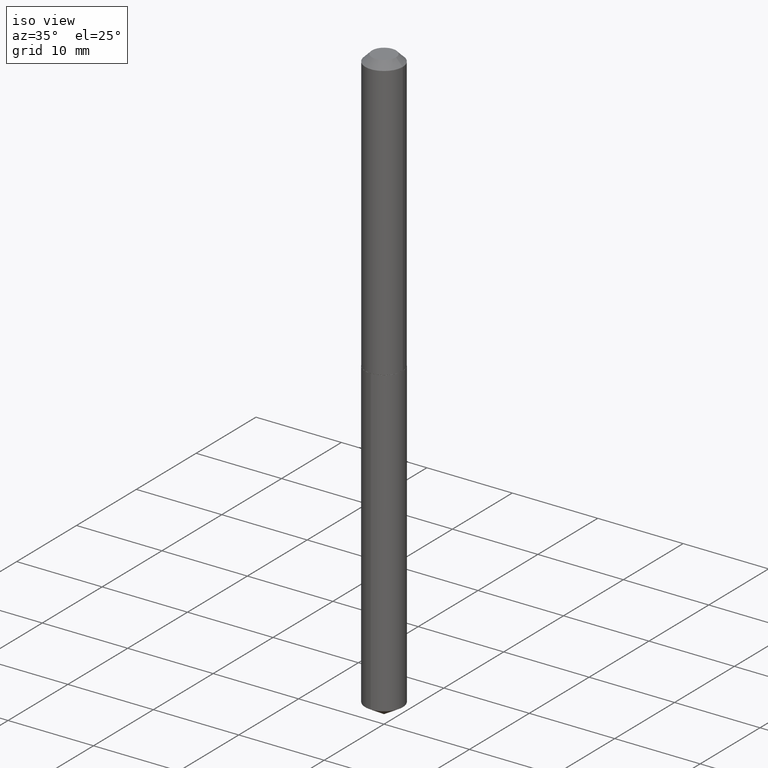
[diagram: clean part render]
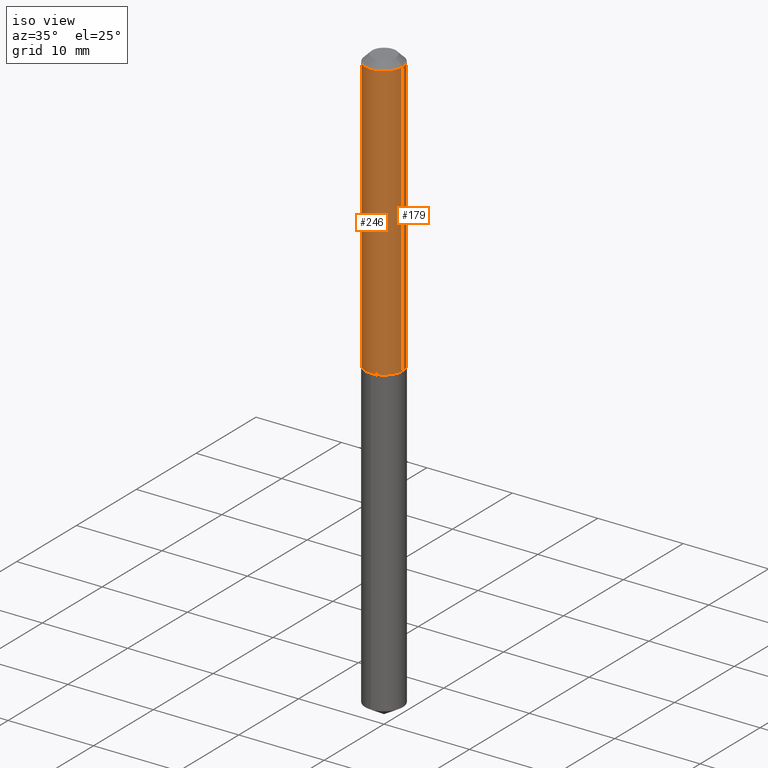
[diagram: same view with one multi-face feature highlighted, each face labeled with its STEP entity id]
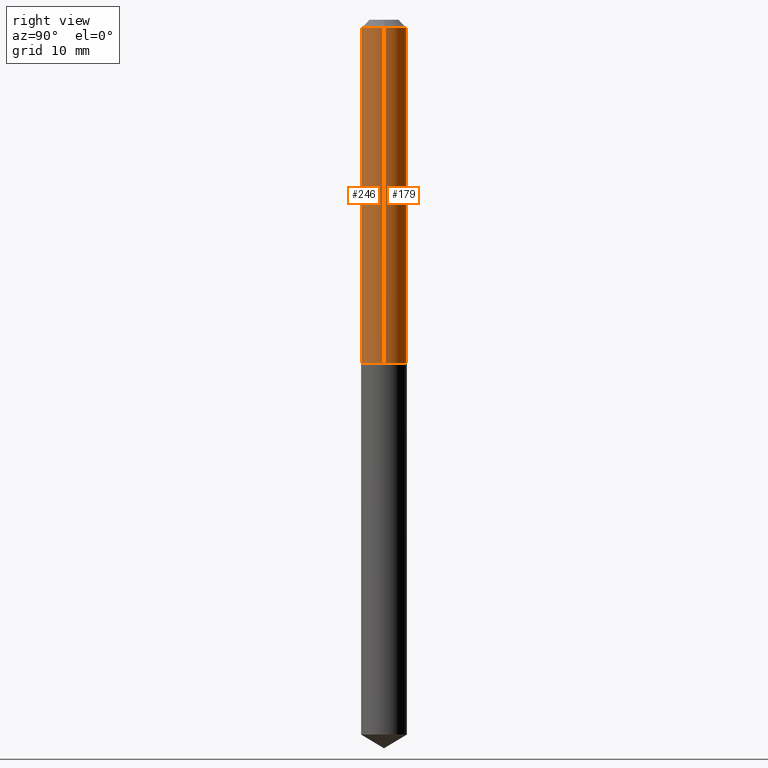
[diagram: same view with one multi-face feature highlighted, each face labeled with its STEP entity id]
A machine part, iso view. The highlighted faces form ONE feature: a constant-radius fillet chain: 2 tangent blend faces with common blend radius 2.1971 mm. The faces share edges in the B-rep.
A second angle (right view) of the same feature is appended — it is thin or edge-on in the first view.
Their STEP definitions:
[1] entity #179 (Cylinder):
#18 = DIRECTION ( 'NONE',  ( 1.000000000000000000, -6.982962677686266711E-15, 0.000000000000000000 ) ) ;
#22 = AXIS2_PLACEMENT_3D ( 'NONE', #192, #185, #358 ) ;
#37 = EDGE_CURVE ( 'NONE', #127, #103, #374, .T. ) ;
#47 = CARTESIAN_POINT ( 'NONE',  ( 7.642090019328599159E-31, -1.091087918388489774E-16, -0.03125000000000019429 ) ) ;
#76 = CARTESIAN_POINT ( 'NONE',  ( 0.08650000000000004907, -6.040262716198624215E-16, 4.217892911063486815E-30 ) ) ;
#92 = CYLINDRICAL_SURFACE ( 'NONE', #383, 0.08650000000000004907 ) ;
#95 = EDGE_CURVE ( 'NONE', #103, #188, #97, .T. ) ;
#97 = CIRCLE ( 'NONE', #208, 0.08649999999999997968 ) ;
#99 = LINE ( 'NONE', #161, #296 ) ;
#103 = VERTEX_POINT ( 'NONE', #348 ) ;
#117 = FACE_OUTER_BOUND ( 'NONE', #364, .T. ) ;
#125 = VERTEX_POINT ( 'NONE', #336 ) ;
#127 = VERTEX_POINT ( 'NONE', #196 ) ;
#130 = DIRECTION ( 'NONE',  ( -2.445468806185136877E-29, 3.491481338843145188E-15, 1.000000000000000000 ) ) ;
#141 = CIRCLE ( 'NONE', #22, 0.08650000000000014622 ) ;
#142 = DIRECTION ( 'NONE',  ( -2.445468806185136877E-29, 3.491481338843145188E-15, 1.000000000000000000 ) ) ;
#161 = CARTESIAN_POINT ( 'NONE',  ( -0.08650000000000004907, 6.146194664324870095E-16, -4.254878853070496492E-30 ) ) ;
#170 = DIRECTION ( 'NONE',  ( -2.445468806185136597E-29, 3.491481338843145583E-15, 1.000000000000000000 ) ) ;
#179 = ADVANCED_FACE ( 'NONE', ( #117 ), #92, .T. ) ;
#185 = DIRECTION ( 'NONE',  ( -2.445468806185136597E-29, 3.491481338843145583E-15, 1.000000000000000000 ) ) ;
#188 = VERTEX_POINT ( 'NONE', #321 ) ;
#192 = CARTESIAN_POINT ( 'NONE',  ( 3.172995776025214465E-29, -4.530197037148981621E-15, -1.297500000000000098 ) ) ;
#196 = CARTESIAN_POINT ( 'NONE',  ( 0.08650000000000014622, -5.134223308768844733E-15, -1.297500000000000098 ) ) ;
#208 = AXIS2_PLACEMENT_3D ( 'NONE', #47, #170, #18 ) ;
#213 = CARTESIAN_POINT ( 'NONE',  ( 0.000000000000000000, 0.000000000000000000, 0.000000000000000000 ) ) ;
#216 = EDGE_CURVE ( 'NONE', #127, #125, #141, .T. ) ;
#217 = DIRECTION ( 'NONE',  ( -2.445468806185136597E-29, 3.491481338843145583E-15, 1.000000000000000000 ) ) ;
#221 = ORIENTED_EDGE ( 'NONE', *, *, #272, .T. ) ;
#272 = EDGE_CURVE ( 'NONE', #125, #188, #99, .T. ) ;
#281 = ORIENTED_EDGE ( 'NONE', *, *, #216, .T. ) ;
#290 = VECTOR ( 'NONE', #142, 39.37007874015748143 ) ;
#296 = VECTOR ( 'NONE', #130, 39.37007874015748143 ) ;
#321 = CARTESIAN_POINT ( 'NONE',  ( -0.08649999999999997968, -1.705033448061427563E-15, -0.03125000000000019429 ) ) ;
#323 = DIRECTION ( 'NONE',  ( 1.000000000000000000, -6.982962677686266711E-15, 4.876176775795935793E-29 ) ) ;
#329 = ORIENTED_EDGE ( 'NONE', *, *, #37, .F. ) ;
#336 = CARTESIAN_POINT ( 'NONE',  ( -0.08650000000000014622, -3.915577570716494020E-15, -1.297500000000000098 ) ) ;
#348 = CARTESIAN_POINT ( 'NONE',  ( 0.08649999999999997968, -7.131350634587109305E-16, -0.03125000000000019429 ) ) ;
#358 = DIRECTION ( 'NONE',  ( 1.000000000000000000, -6.982962677686270655E-15, 0.000000000000000000 ) ) ;
#363 = ORIENTED_EDGE ( 'NONE', *, *, #95, .F. ) ;
#364 = EDGE_LOOP ( 'NONE', ( #281, #221, #363, #329 ) ) ;
#374 = LINE ( 'NONE', #76, #290 ) ;
#383 = AXIS2_PLACEMENT_3D ( 'NONE', #213, #217, #323 ) ;
[2] entity #246 (Cylinder):
#35 = DIRECTION ( 'NONE',  ( -2.445468806185136597E-29, 3.491481338843145583E-15, 1.000000000000000000 ) ) ;
#37 = EDGE_CURVE ( 'NONE', #127, #103, #374, .T. ) ;
#54 = EDGE_CURVE ( 'NONE', #125, #127, #81, .T. ) ;
#59 = AXIS2_PLACEMENT_3D ( 'NONE', #171, #109, #138 ) ;
#60 = CYLINDRICAL_SURFACE ( 'NONE', #361, 0.08650000000000004907 ) ;
#76 = CARTESIAN_POINT ( 'NONE',  ( 0.08650000000000004907, -6.040262716198624215E-16, 4.217892911063486815E-30 ) ) ;
#81 = CIRCLE ( 'NONE', #317, 0.08650000000000014622 ) ;
#99 = LINE ( 'NONE', #161, #296 ) ;
#103 = VERTEX_POINT ( 'NONE', #348 ) ;
#109 = DIRECTION ( 'NONE',  ( -2.445468806185136597E-29, 3.491481338843145583E-15, 1.000000000000000000 ) ) ;
#125 = VERTEX_POINT ( 'NONE', #336 ) ;
#127 = VERTEX_POINT ( 'NONE', #196 ) ;
#130 = DIRECTION ( 'NONE',  ( -2.445468806185136877E-29, 3.491481338843145188E-15, 1.000000000000000000 ) ) ;
#138 = DIRECTION ( 'NONE',  ( 1.000000000000000000, -6.982962677686266711E-15, 0.000000000000000000 ) ) ;
#142 = DIRECTION ( 'NONE',  ( -2.445468806185136877E-29, 3.491481338843145188E-15, 1.000000000000000000 ) ) ;
#158 = ORIENTED_EDGE ( 'NONE', *, *, #272, .F. ) ;
#161 = CARTESIAN_POINT ( 'NONE',  ( -0.08650000000000004907, 6.146194664324870095E-16, -4.254878853070496492E-30 ) ) ;
#171 = CARTESIAN_POINT ( 'NONE',  ( 7.642090019328599159E-31, -1.091087918388489774E-16, -0.03125000000000019429 ) ) ;
#188 = VERTEX_POINT ( 'NONE', #321 ) ;
#196 = CARTESIAN_POINT ( 'NONE',  ( 0.08650000000000014622, -5.134223308768844733E-15, -1.297500000000000098 ) ) ;
#204 = CARTESIAN_POINT ( 'NONE',  ( 3.172995776025214465E-29, -4.530197037148981621E-15, -1.297500000000000098 ) ) ;
#227 = DIRECTION ( 'NONE',  ( 1.000000000000000000, -6.982962677686270655E-15, 0.000000000000000000 ) ) ;
#244 = ORIENTED_EDGE ( 'NONE', *, *, #54, .T. ) ;
#246 = ADVANCED_FACE ( 'NONE', ( #328 ), #60, .T. ) ;
#247 = EDGE_LOOP ( 'NONE', ( #158, #244, #331, #315 ) ) ;
#272 = EDGE_CURVE ( 'NONE', #125, #188, #99, .T. ) ;
#273 = DIRECTION ( 'NONE',  ( 1.000000000000000000, -6.982962677686266711E-15, 4.876176775795935793E-29 ) ) ;
#290 = VECTOR ( 'NONE', #142, 39.37007874015748143 ) ;
#296 = VECTOR ( 'NONE', #130, 39.37007874015748143 ) ;
#298 = CARTESIAN_POINT ( 'NONE',  ( 0.000000000000000000, 0.000000000000000000, 0.000000000000000000 ) ) ;
#315 = ORIENTED_EDGE ( 'NONE', *, *, #368, .F. ) ;
#317 = AXIS2_PLACEMENT_3D ( 'NONE', #204, #371, #227 ) ;
#321 = CARTESIAN_POINT ( 'NONE',  ( -0.08649999999999997968, -1.705033448061427563E-15, -0.03125000000000019429 ) ) ;
#328 = FACE_OUTER_BOUND ( 'NONE', #247, .T. ) ;
#331 = ORIENTED_EDGE ( 'NONE', *, *, #37, .T. ) ;
#334 = CIRCLE ( 'NONE', #59, 0.08649999999999997968 ) ;
#336 = CARTESIAN_POINT ( 'NONE',  ( -0.08650000000000014622, -3.915577570716494020E-15, -1.297500000000000098 ) ) ;
#348 = CARTESIAN_POINT ( 'NONE',  ( 0.08649999999999997968, -7.131350634587109305E-16, -0.03125000000000019429 ) ) ;
#361 = AXIS2_PLACEMENT_3D ( 'NONE', #298, #35, #273 ) ;
#368 = EDGE_CURVE ( 'NONE', #188, #103, #334, .T. ) ;
#371 = DIRECTION ( 'NONE',  ( -2.445468806185136597E-29, 3.491481338843145583E-15, 1.000000000000000000 ) ) ;
#374 = LINE ( 'NONE', #76, #290 ) ;